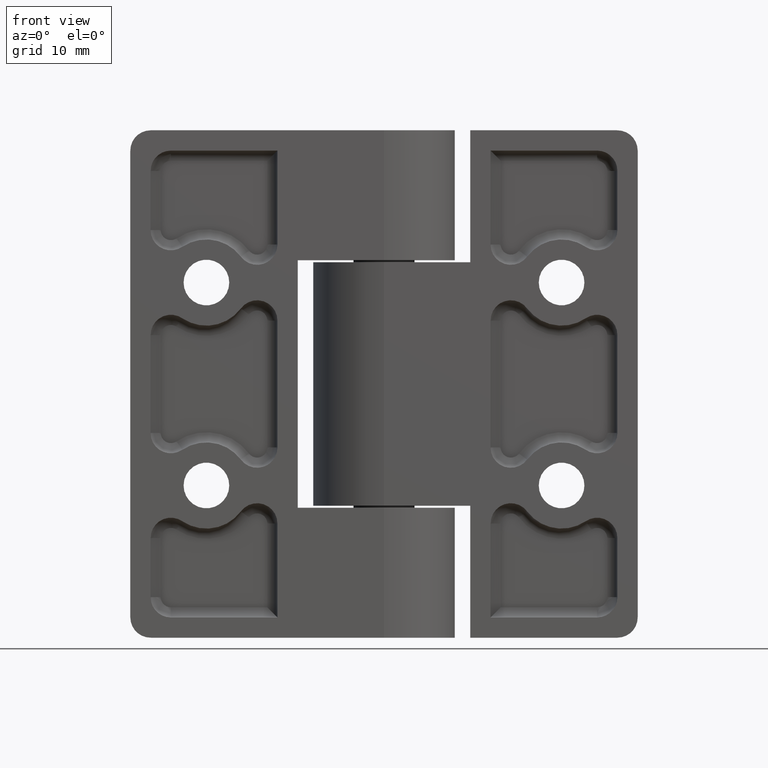
[diagram: clean part render]
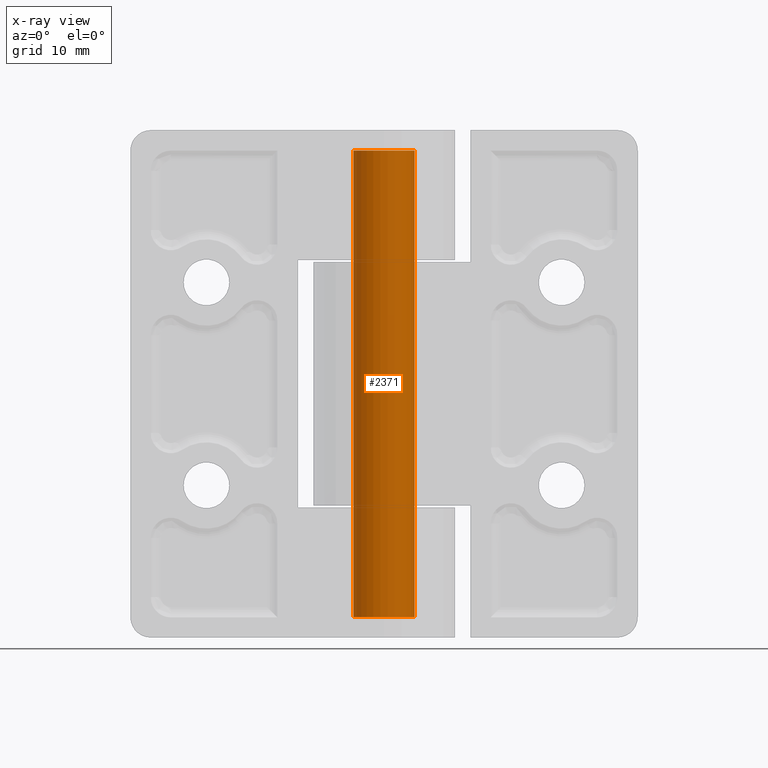
[diagram: x-ray — body ghosted, one internal face saturated and labeled with its STEP entity id]
A machine part, front view, then the same camera in x-ray: the body is ghosted and one INTERNAL B-rep face — a face not visible from any outside direction — is saturated and labeled: STEP entity #2371.
In plain terms, the highlighted cylindrical surface (bore or boss wall) has radius 3 mm, axis along (0, 0, 1).
Its self-contained STEP definition (entity closure, byte-faithful):
#67=FACE_BOUND('',#472,.T.);
#295=FACE_OUTER_BOUND('',#471,.T.);
#471=EDGE_LOOP('',(#2158));
#472=EDGE_LOOP('',(#2159));
#956=CIRCLE('',#2676,3.);
#957=CIRCLE('',#2678,3.);
#1166=VERTEX_POINT('',#4426);
#1167=VERTEX_POINT('',#4429);
#1497=EDGE_CURVE('',#1166,#1166,#956,.T.);
#1498=EDGE_CURVE('',#1167,#1167,#957,.T.);
#2158=ORIENTED_EDGE('',*,*,#1497,.T.);
#2159=ORIENTED_EDGE('',*,*,#1498,.T.);
#2225=CYLINDRICAL_SURFACE('',#2677,3.);
#2371=ADVANCED_FACE('',(#295,#67),#2225,.T.);
#2676=AXIS2_PLACEMENT_3D('',#4427,#3437,#3438);
#2677=AXIS2_PLACEMENT_3D('',#4428,#3439,#3440);
#2678=AXIS2_PLACEMENT_3D('',#4430,#3441,#3442);
#3437=DIRECTION('center_axis',(0.,0.,1.));
#3438=DIRECTION('ref_axis',(-1.,0.,0.));
#3439=DIRECTION('center_axis',(0.,0.,1.));
#3440=DIRECTION('ref_axis',(-1.,0.,0.));
#3441=DIRECTION('center_axis',(0.,0.,-1.));
#3442=DIRECTION('ref_axis',(-1.,0.,0.));
#4426=CARTESIAN_POINT('',(3.,3.67394039744206E-16,-23.));
#4427=CARTESIAN_POINT('Origin',(0.,0.,-23.));
#4428=CARTESIAN_POINT('Origin',(0.,0.,0.));
#4429=CARTESIAN_POINT('',(3.,3.67394039744206E-16,23.));
#4430=CARTESIAN_POINT('Origin',(0.,0.,23.));